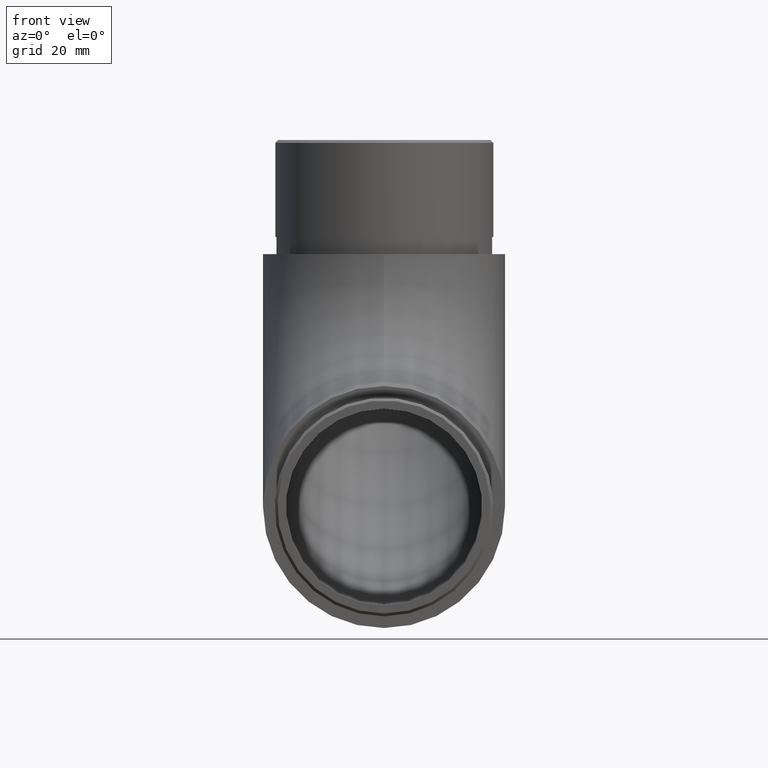
[diagram: clean part render]
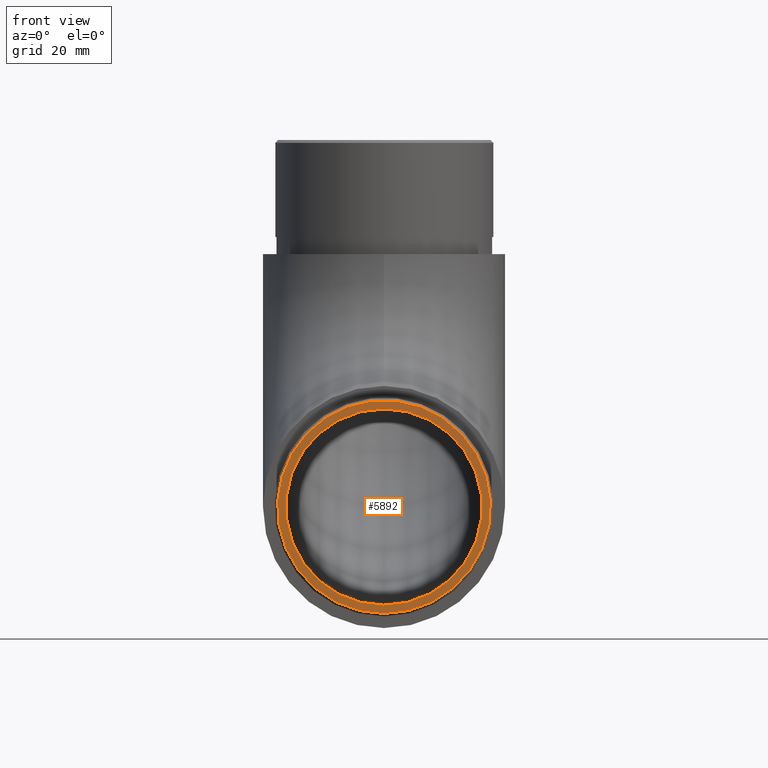
[diagram: same view with one face highlighted and labeled with its STEP entity id]
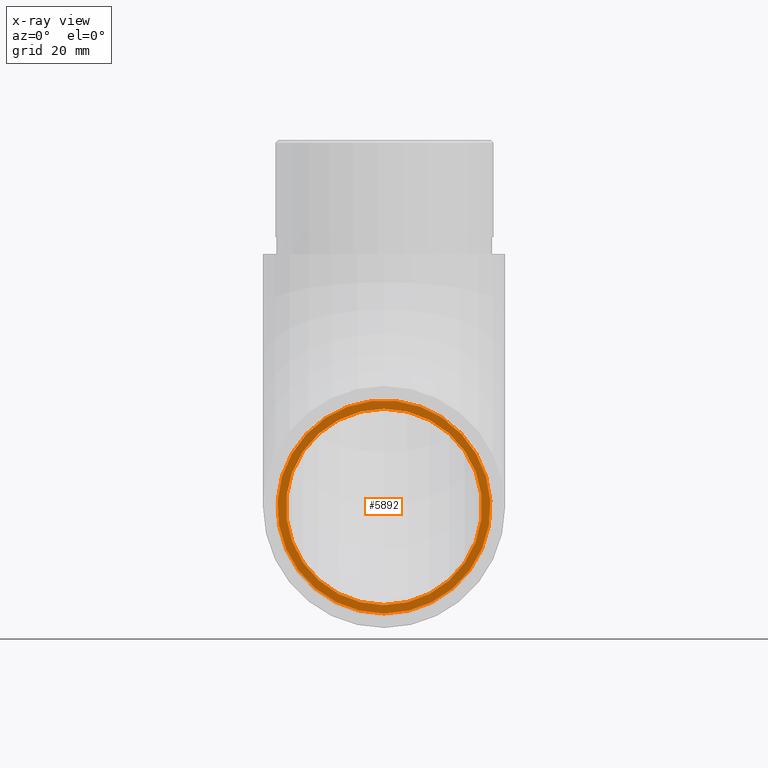
[diagram: x-ray of the same camera — body ghosted, the highlighted face saturated]
A machine part, front view. The second image highlights one B-rep face of the part: STEP entity #5892.
The next image is the same camera in x-ray: the body ghosted, the highlighted face saturated — about 0% of this face is hidden behind the body in this view.
In plain terms, the highlighted planar face has unit normal (0, -1, 0).
Its self-contained STEP definition (entity closure, byte-faithful):
#341 = DIRECTION ( 'NONE',  ( 0.0000000000000000000, -1.000000000000000000, 0.0000000000000000000 ) ) ;
#433 = AXIS2_PLACEMENT_3D ( 'NONE', #5854, #341, #3186 ) ;
#597 = CARTESIAN_POINT ( 'NONE',  ( 0.0000000000000000000, -20.00000000000000000, 21.20000000000000300 ) ) ;
#1717 = DIRECTION ( 'NONE',  ( 0.0000000000000000000, -0.0000000000000000000, -1.000000000000000000 ) ) ;
#1818 = EDGE_CURVE ( 'NONE', #7711, #7711, #2361, .T. ) ;
#2036 = FACE_OUTER_BOUND ( 'NONE', #8633, .T. ) ;
#2361 = CIRCLE ( 'NONE', #433, 17.19999999999999900 ) ;
#2932 = EDGE_CURVE ( 'NONE', #8583, #8583, #10898, .T. ) ;
#3186 = DIRECTION ( 'NONE',  ( 0.0000000000000000000, 0.0000000000000000000, -1.000000000000000000 ) ) ;
#3268 = AXIS2_PLACEMENT_3D ( 'NONE', #4516, #11232, #1717 ) ;
#3867 = CARTESIAN_POINT ( 'NONE',  ( 0.0000000000000000000, -20.00000000000000000, 4.000000000000003600 ) ) ;
#4516 = CARTESIAN_POINT ( 'NONE',  ( 0.0000000000000000000, -20.00000000000000000, 21.20000000000000300 ) ) ;
#4680 = EDGE_LOOP ( 'NONE', ( #12030 ) ) ;
#5854 = CARTESIAN_POINT ( 'NONE',  ( 0.0000000000000000000, -20.00000000000000000, 21.20000000000000300 ) ) ;
#5892 = ADVANCED_FACE ( 'NONE', ( #2036, #11306 ), #10747, .T. ) ;
#7096 = DIRECTION ( 'NONE',  ( 0.0000000000000000000, 0.0000000000000000000, -1.000000000000000000 ) ) ;
#7711 = VERTEX_POINT ( 'NONE', #3867 ) ;
#8583 = VERTEX_POINT ( 'NONE', #9435 ) ;
#8633 = EDGE_LOOP ( 'NONE', ( #11701 ) ) ;
#8906 = DIRECTION ( 'NONE',  ( 0.0000000000000000000, -1.000000000000000000, 0.0000000000000000000 ) ) ;
#9435 = CARTESIAN_POINT ( 'NONE',  ( 0.0000000000000000000, -20.00000000000000000, 2.550000000000024700 ) ) ;
#10013 = AXIS2_PLACEMENT_3D ( 'NONE', #597, #8906, #7096 ) ;
#10747 = PLANE ( 'NONE',  #3268 ) ;
#10898 = CIRCLE ( 'NONE', #10013, 18.64999999999998100 ) ;
#11232 = DIRECTION ( 'NONE',  ( 0.0000000000000000000, -1.000000000000000000, 0.0000000000000000000 ) ) ;
#11306 = FACE_BOUND ( 'NONE', #4680, .T. ) ;
#11701 = ORIENTED_EDGE ( 'NONE', *, *, #2932, .T. ) ;
#12030 = ORIENTED_EDGE ( 'NONE', *, *, #1818, .F. ) ;